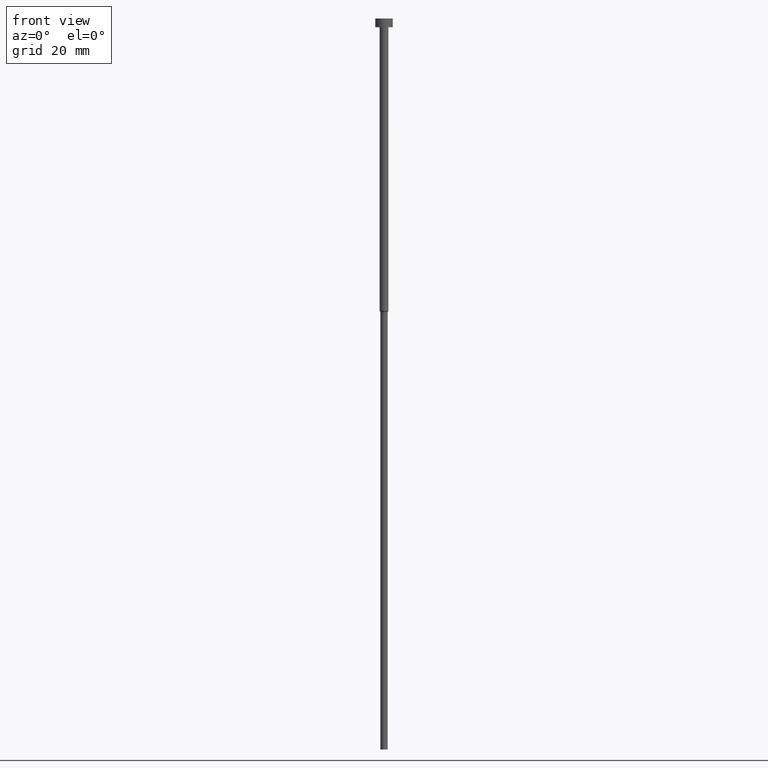
[diagram: clean part render]
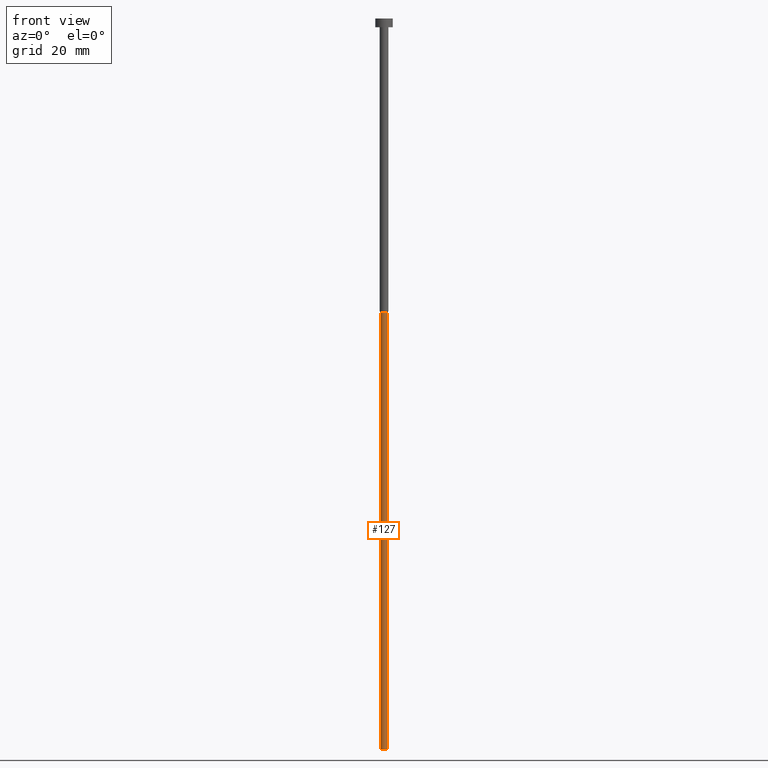
[diagram: same view with one face highlighted and labeled with its STEP entity id]
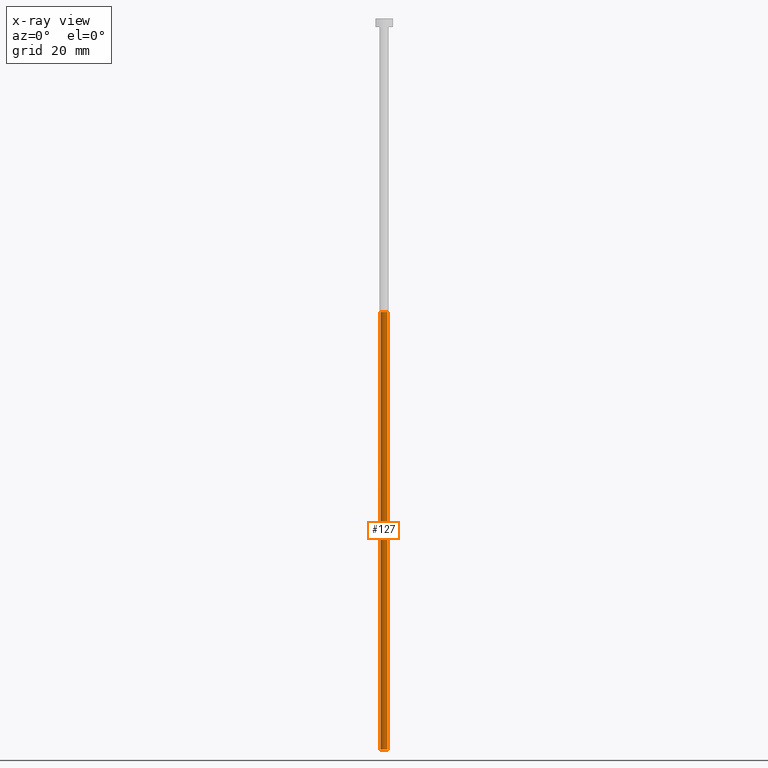
[diagram: x-ray of the same camera — body ghosted, the highlighted face saturated]
A machine part, front view. The second image highlights one B-rep face of the part: STEP entity #127.
The next image is the same camera in x-ray: the body ghosted, the highlighted face saturated — about 0% of this face is hidden behind the body in this view.
In plain terms, the highlighted cylindrical surface (edge-blend (fillet) strip) has radius 1.25 mm, axis along (-0, -0, 1).
Its self-contained STEP definition (entity closure, byte-faithful):
#2 = CIRCLE ( 'NONE', #155, 1.250000000000000000 ) ;
#14 = LINE ( 'NONE', #315, #354 ) ;
#16 = EDGE_CURVE ( 'NONE', #343, #298, #14, .T. ) ;
#49 = VERTEX_POINT ( 'NONE', #332 ) ;
#54 = DIRECTION ( 'NONE',  ( -0.000000000000000000, -0.000000000000000000, 1.000000000000000000 ) ) ;
#77 = ORIENTED_EDGE ( 'NONE', *, *, #16, .F. ) ;
#113 = FACE_OUTER_BOUND ( 'NONE', #217, .T. ) ;
#121 = CARTESIAN_POINT ( 'NONE',  ( 1.250000000000000000, 0.000000000000000000, 0.000000000000000000 ) ) ;
#127 = ADVANCED_FACE ( 'NONE', ( #113 ), #199, .T. ) ;
#129 = AXIS2_PLACEMENT_3D ( 'NONE', #221, #134, #272 ) ;
#134 = DIRECTION ( 'NONE',  ( -0.000000000000000000, -0.000000000000000000, 1.000000000000000000 ) ) ;
#143 = DIRECTION ( 'NONE',  ( -0.000000000000000000, -0.000000000000000000, 1.000000000000000000 ) ) ;
#155 = AXIS2_PLACEMENT_3D ( 'NONE', #178, #283, #205 ) ;
#175 = EDGE_CURVE ( 'NONE', #343, #212, #284, .T. ) ;
#178 = CARTESIAN_POINT ( 'NONE',  ( 0.000000000000000000, 0.000000000000000000, -100.4330127018922241 ) ) ;
#190 = ORIENTED_EDGE ( 'NONE', *, *, #282, .F. ) ;
#199 = CYLINDRICAL_SURFACE ( 'NONE', #226, 1.250000000000000000 ) ;
#205 = DIRECTION ( 'NONE',  ( 1.000000000000000000, 0.000000000000000000, 0.000000000000000000 ) ) ;
#212 = VERTEX_POINT ( 'NONE', #231 ) ;
#217 = EDGE_LOOP ( 'NONE', ( #77, #341, #235, #190 ) ) ;
#221 = CARTESIAN_POINT ( 'NONE',  ( 0.000000000000000000, 0.000000000000000000, -250.0000000000000000 ) ) ;
#226 = AXIS2_PLACEMENT_3D ( 'NONE', #228, #54, #278 ) ;
#228 = CARTESIAN_POINT ( 'NONE',  ( 0.000000000000000000, 0.000000000000000000, 0.000000000000000000 ) ) ;
#231 = CARTESIAN_POINT ( 'NONE',  ( 1.250000000000000000, 0.000000000000000000, -250.0000000000000000 ) ) ;
#235 = ORIENTED_EDGE ( 'NONE', *, *, #242, .T. ) ;
#242 = EDGE_CURVE ( 'NONE', #212, #49, #311, .T. ) ;
#272 = DIRECTION ( 'NONE',  ( 1.000000000000000000, 0.000000000000000000, 0.000000000000000000 ) ) ;
#278 = DIRECTION ( 'NONE',  ( 1.000000000000000000, 0.000000000000000000, 0.000000000000000000 ) ) ;
#282 = EDGE_CURVE ( 'NONE', #298, #49, #2, .T. ) ;
#283 = DIRECTION ( 'NONE',  ( -0.000000000000000000, -0.000000000000000000, 1.000000000000000000 ) ) ;
#284 = CIRCLE ( 'NONE', #129, 1.250000000000000000 ) ;
#289 = DIRECTION ( 'NONE',  ( -0.000000000000000000, -0.000000000000000000, 1.000000000000000000 ) ) ;
#298 = VERTEX_POINT ( 'NONE', #309 ) ;
#305 = VECTOR ( 'NONE', #143, 1000.000000000000000 ) ;
#309 = CARTESIAN_POINT ( 'NONE',  ( -1.250000000000000000, 1.530808498934191571E-16, -100.4330127018922241 ) ) ;
#311 = LINE ( 'NONE', #121, #305 ) ;
#312 = CARTESIAN_POINT ( 'NONE',  ( -1.250000000000000000, 1.530808498934191571E-16, -250.0000000000000000 ) ) ;
#315 = CARTESIAN_POINT ( 'NONE',  ( -1.250000000000000000, 1.530808498934191571E-16, 0.000000000000000000 ) ) ;
#332 = CARTESIAN_POINT ( 'NONE',  ( 1.250000000000000000, 0.000000000000000000, -100.4330127018922241 ) ) ;
#341 = ORIENTED_EDGE ( 'NONE', *, *, #175, .T. ) ;
#343 = VERTEX_POINT ( 'NONE', #312 ) ;
#354 = VECTOR ( 'NONE', #289, 1000.000000000000000 ) ;